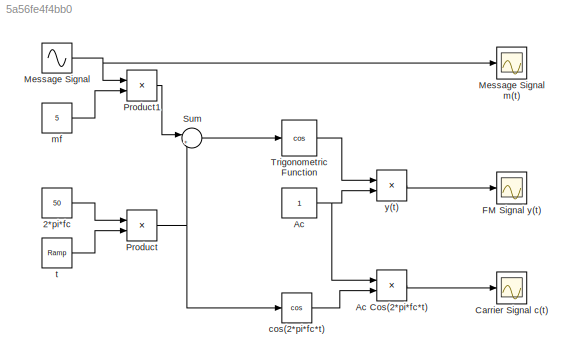
MODEL slx_5a56fe4f4bb0
KIND model
CONFIG AbsTol = auto
CONFIG EnableMultiTasking = off
CONFIG FixedStep = auto
CONFIG MaxStep = auto
CONFIG MinStep = auto
CONFIG RelTol = 1e-3
CONFIG SampleTimeConstraint = Unconstrained
CONFIG SolverName = VariableStepAuto
CONFIG StartTime = 0.0
CONFIG StopTime = 10.0
BLOCK [Constant] 2*pi*fc
  Value = 50
BLOCK [Constant] Ac
BLOCK [Product] Ac Cos(2*pi*fc*t)
BLOCK [Scope] Carrier Signal c(t)
  Floating = off
  NumInputPorts = 1
  ScopeSpecificationString = Simulink.scopes.TimeScopeBlockCfg('CurrentConfiguration', extmgr.ConfigurationSet(extmgr.Configuration('Core','General UI',true),extmgr.Configuration('Core','Source UI',true),extmgr.Configuration('Sources','WiredSimulink',true,'DataLoggingVariableName','ScopeData2'),extmgr.Configuration('Visuals','Time Domain',true,'SerializedDisplays',{struct('MinYLimReal','-1.25','MaxYLimReal','1.25','YLabelReal...<+1389ch>
BLOCK [Scope] FM Signal y(t)
  Floating = off
  NumInputPorts = 1
  ScopeSpecificationString = Simulink.scopes.TimeScopeBlockCfg('CurrentConfiguration', extmgr.ConfigurationSet(extmgr.Configuration('Core','General UI',true),extmgr.Configuration('Core','Source UI',true),extmgr.Configuration('Sources','WiredSimulink',true),extmgr.Configuration('Visuals','Time Domain',true,'SerializedDisplays',{struct('MinYLimReal','-1.25','MaxYLimReal','1.25','YLabelReal','','MinYLimMag','0.00000','MaxYLimMag...<+1337ch>
BLOCK [Sin] Message Signal
  Frequency = 2*pi
  SampleTime = 1/5000
BLOCK [Scope] Message Signal m(t)
  Floating = off
  NumInputPorts = 1
  ScopeSpecificationString = Simulink.scopes.TimeScopeBlockCfg('CurrentConfiguration', extmgr.ConfigurationSet(extmgr.Configuration('Core','General UI',true),extmgr.Configuration('Core','Source UI',true),extmgr.Configuration('Sources','WiredSimulink',true,'DataLoggingVariableName','ScopeData1'),extmgr.Configuration('Visuals','Time Domain',true,'SerializedDisplays',{struct('MinYLimReal','-1.25','MaxYLimReal','1.25','YLabelReal...<+1389ch>
BLOCK [Product] Product
BLOCK [Product] Product1
BLOCK [Sum] Sum
  Inputs = |++
BLOCK [Trigonometry] Trigonometric Function
  Operator = cos
BLOCK [Trigonometry] cos(2*pi*fc*t)
  Operator = cos
BLOCK [Constant] mf
  Value = 5
BLOCK [Reference] t  REF=simulink/Sources/Ramp
  SourceBlock = simulink/Sources/Ramp
  SourceType = Ramp
BLOCK [Product] y(t)
LINE 2*pi*fc:1 -> Product:1
LINE Ac Cos(2*pi*fc*t):1 -> Carrier Signal c(t):1
NET Ac:1 -> Ac Cos(2*pi*fc*t):1, y(t):2
NET Message Signal:1 -> Message Signal m(t):1, Product1:1
LINE Product1:1 -> Sum:1
NET Product:1 -> Sum:2, cos(2*pi*fc*t):1
LINE Sum:1 -> Trigonometric Function:1
LINE Trigonometric Function:1 -> y(t):1
LINE cos(2*pi*fc*t):1 -> Ac Cos(2*pi*fc*t):2
LINE mf:1 -> Product1:2
LINE t:1 -> Product:2
LINE y(t):1 -> FM Signal y(t):1
note: NET lines group one-source signal fan-out (src -> all destinations, sorted); 1:1 wires keep LINE
